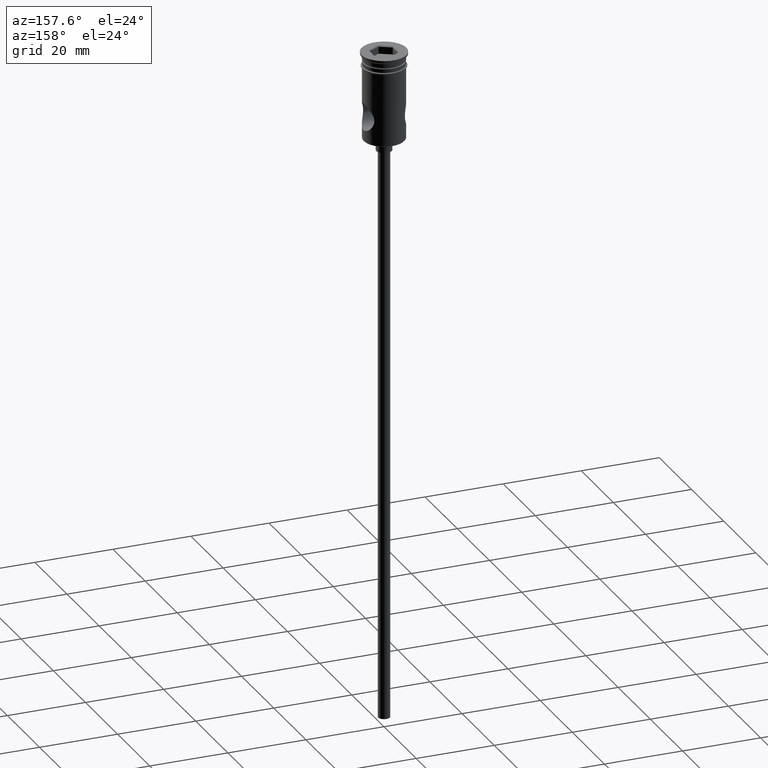
[diagram: clean part render]
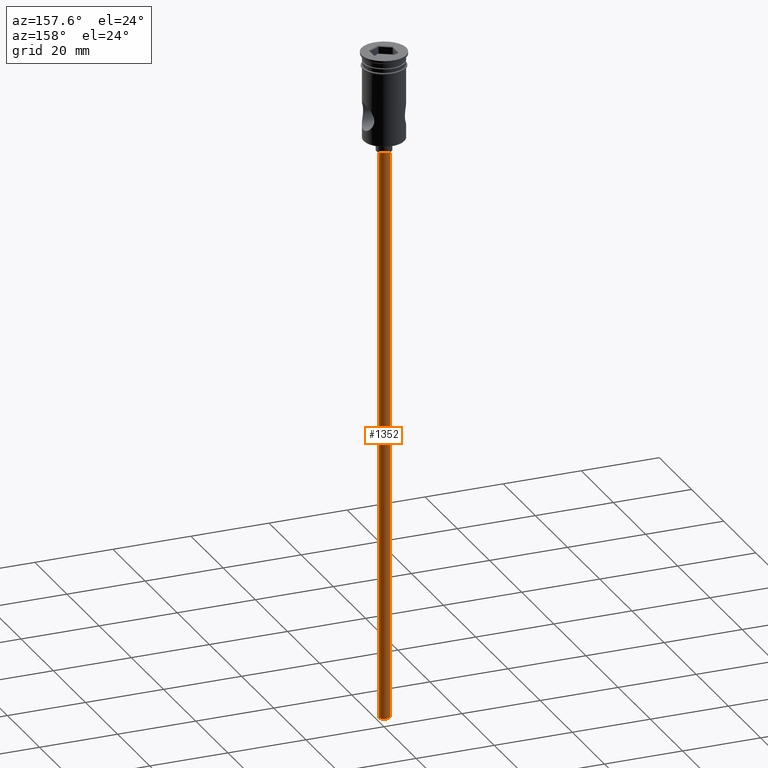
[diagram: same view with one face highlighted and labeled with its STEP entity id]
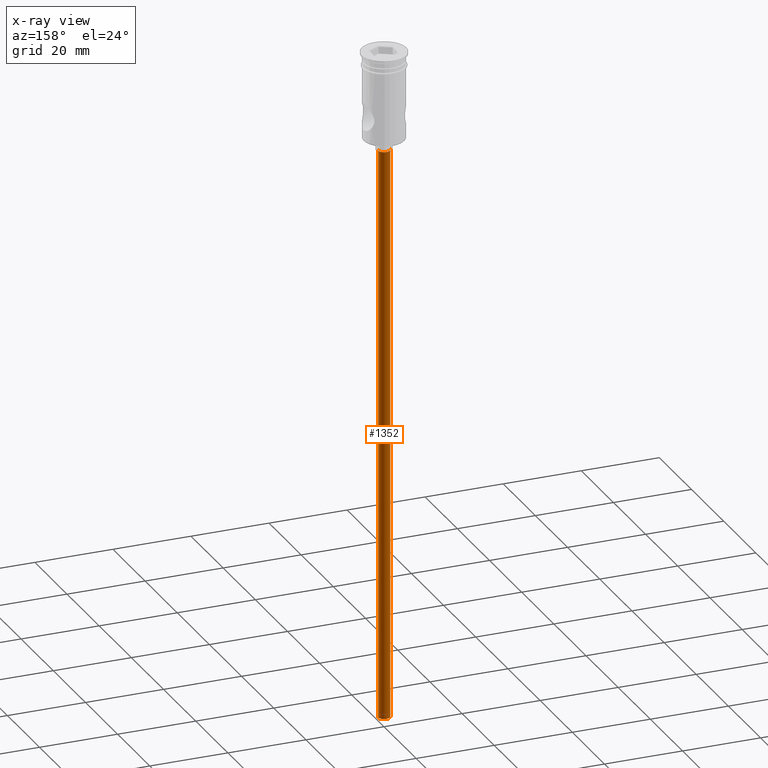
[diagram: x-ray of the same camera — body ghosted, the highlighted face saturated]
A machine part, auxiliary view. The second image highlights one B-rep face of the part: STEP entity #1352.
The next image is the same camera in x-ray: the body ghosted, the highlighted face saturated — about 0% of this face is hidden behind the body in this view.
In plain terms, the highlighted cylindrical surface (edge-blend (fillet) strip) has radius 1.5 mm, axis along (-0, -0, 1).
Its self-contained STEP definition (entity closure, byte-faithful):
#9 = DIRECTION ( 'NONE',  ( -0.000000000000000000, -0.000000000000000000, 1.000000000000000000 ) ) ;
#19 = DIRECTION ( 'NONE',  ( -1.000000000000000000, 0.000000000000000000, 0.000000000000000000 ) ) ;
#36 = VERTEX_POINT ( 'NONE', #779 ) ;
#73 = ORIENTED_EDGE ( 'NONE', *, *, #358, .T. ) ;
#144 = CIRCLE ( 'NONE', #494, 1.500000000000000222 ) ;
#180 = CARTESIAN_POINT ( 'NONE',  ( 1.500000000000000222, 0.000000000000000000, -25.50000000000000000 ) ) ;
#217 = DIRECTION ( 'NONE',  ( 0.000000000000000000, 0.000000000000000000, -1.000000000000000000 ) ) ;
#297 = DIRECTION ( 'NONE',  ( -0.000000000000000000, -0.000000000000000000, 1.000000000000000000 ) ) ;
#334 = LINE ( 'NONE', #782, #1176 ) ;
#339 = VERTEX_POINT ( 'NONE', #398 ) ;
#358 = EDGE_CURVE ( 'NONE', #840, #36, #1019, .T. ) ;
#387 = EDGE_CURVE ( 'NONE', #339, #582, #334, .T. ) ;
#392 = CIRCLE ( 'NONE', #869, 1.500000000000000222 ) ;
#398 = CARTESIAN_POINT ( 'NONE',  ( 1.500000000000000222, 0.000000000000000000, -172.5000000000000000 ) ) ;
#407 = CARTESIAN_POINT ( 'NONE',  ( 0.000000000000000000, 0.000000000000000000, -172.5000000000000000 ) ) ;
#469 = EDGE_CURVE ( 'NONE', #36, #582, #392, .T. ) ;
#494 = AXIS2_PLACEMENT_3D ( 'NONE', #1222, #217, #19 ) ;
#576 = DIRECTION ( 'NONE',  ( -1.000000000000000000, 0.000000000000000000, 0.000000000000000000 ) ) ;
#580 = CARTESIAN_POINT ( 'NONE',  ( -1.500000000000000222, 1.836970198721030181E-16, -172.5000000000000000 ) ) ;
#582 = VERTEX_POINT ( 'NONE', #180 ) ;
#728 = VECTOR ( 'NONE', #9, 1000.000000000000000 ) ;
#779 = CARTESIAN_POINT ( 'NONE',  ( -1.500000000000000222, 1.836970198721030181E-16, -25.50000000000000000 ) ) ;
#782 = CARTESIAN_POINT ( 'NONE',  ( 1.500000000000000222, 0.000000000000000000, -172.5000000000000000 ) ) ;
#840 = VERTEX_POINT ( 'NONE', #580 ) ;
#862 = DIRECTION ( 'NONE',  ( 1.000000000000000000, 0.000000000000000000, 0.000000000000000000 ) ) ;
#869 = AXIS2_PLACEMENT_3D ( 'NONE', #1400, #1169, #576 ) ;
#872 = AXIS2_PLACEMENT_3D ( 'NONE', #407, #297, #862 ) ;
#901 = ORIENTED_EDGE ( 'NONE', *, *, #1398, .F. ) ;
#958 = CYLINDRICAL_SURFACE ( 'NONE', #872, 1.500000000000000222 ) ;
#1019 = LINE ( 'NONE', #1118, #728 ) ;
#1097 = ORIENTED_EDGE ( 'NONE', *, *, #469, .T. ) ;
#1118 = CARTESIAN_POINT ( 'NONE',  ( -1.500000000000000222, 1.836970198721030181E-16, -172.5000000000000000 ) ) ;
#1132 = DIRECTION ( 'NONE',  ( -0.000000000000000000, -0.000000000000000000, 1.000000000000000000 ) ) ;
#1169 = DIRECTION ( 'NONE',  ( 0.000000000000000000, 0.000000000000000000, -1.000000000000000000 ) ) ;
#1176 = VECTOR ( 'NONE', #1132, 1000.000000000000000 ) ;
#1211 = ORIENTED_EDGE ( 'NONE', *, *, #387, .F. ) ;
#1222 = CARTESIAN_POINT ( 'NONE',  ( 0.000000000000000000, 0.000000000000000000, -172.5000000000000000 ) ) ;
#1339 = EDGE_LOOP ( 'NONE', ( #901, #73, #1097, #1211 ) ) ;
#1352 = ADVANCED_FACE ( 'NONE', ( #1404 ), #958, .T. ) ;
#1398 = EDGE_CURVE ( 'NONE', #840, #339, #144, .T. ) ;
#1400 = CARTESIAN_POINT ( 'NONE',  ( 0.000000000000000000, 0.000000000000000000, -25.50000000000000000 ) ) ;
#1404 = FACE_OUTER_BOUND ( 'NONE', #1339, .T. ) ;